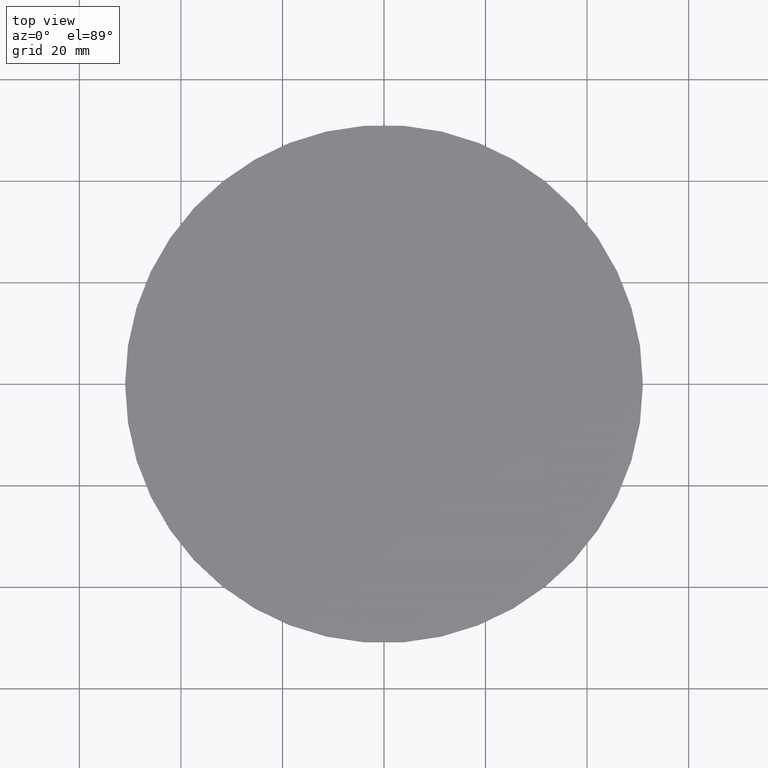
[diagram: clean part render]
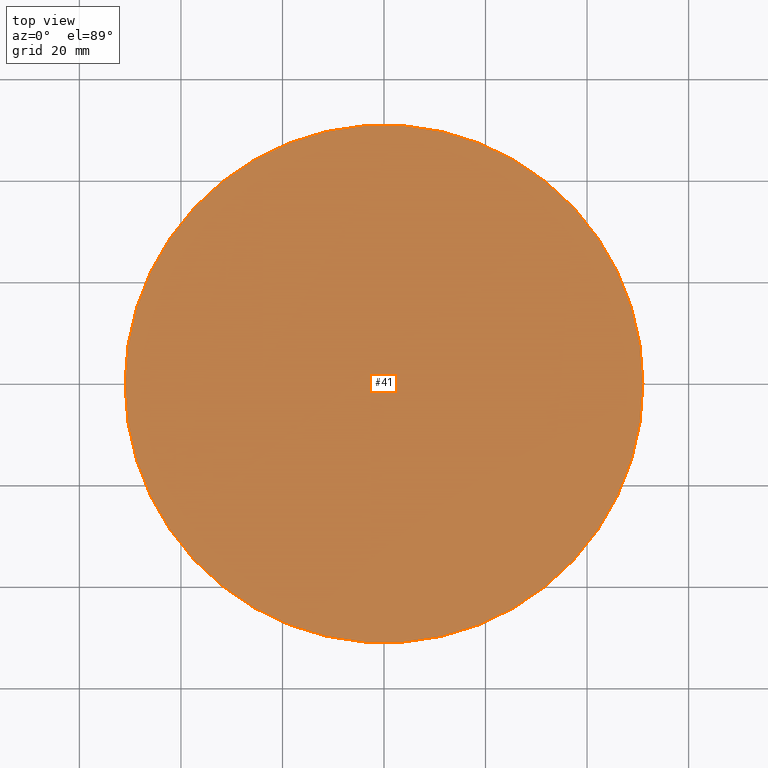
[diagram: same view with one face highlighted and labeled with its STEP entity id]
A machine part, top view. The second image highlights one B-rep face of the part: STEP entity #41.
In plain terms, the highlighted planar face has unit normal (0, 0, 1).
Its self-contained STEP definition (entity closure, byte-faithful):
#16=PLANE('',#69);
#19=FACE_OUTER_BOUND('',#22,.T.);
#22=EDGE_LOOP('',(#37));
#25=CIRCLE('',#66,51.);
#27=VERTEX_POINT('',#85);
#29=EDGE_CURVE('',#27,#27,#25,.T.);
#37=ORIENTED_EDGE('',*,*,#29,.T.);
#41=ADVANCED_FACE('',(#19),#16,.T.);
#66=AXIS2_PLACEMENT_3D('',#86,#74,#75);
#69=AXIS2_PLACEMENT_3D('',#91,#81,#82);
#74=DIRECTION('center_axis',(0.,0.,1.));
#75=DIRECTION('ref_axis',(-1.,0.,0.));
#81=DIRECTION('center_axis',(0.,0.,1.));
#82=DIRECTION('ref_axis',(1.,0.,0.));
#85=CARTESIAN_POINT('',(51.,6.2456986756515E-15,3.));
#86=CARTESIAN_POINT('Origin',(0.,0.,3.));
#91=CARTESIAN_POINT('Origin',(-2.84250997382096E-15,1.16101754209167E-15,
3.));